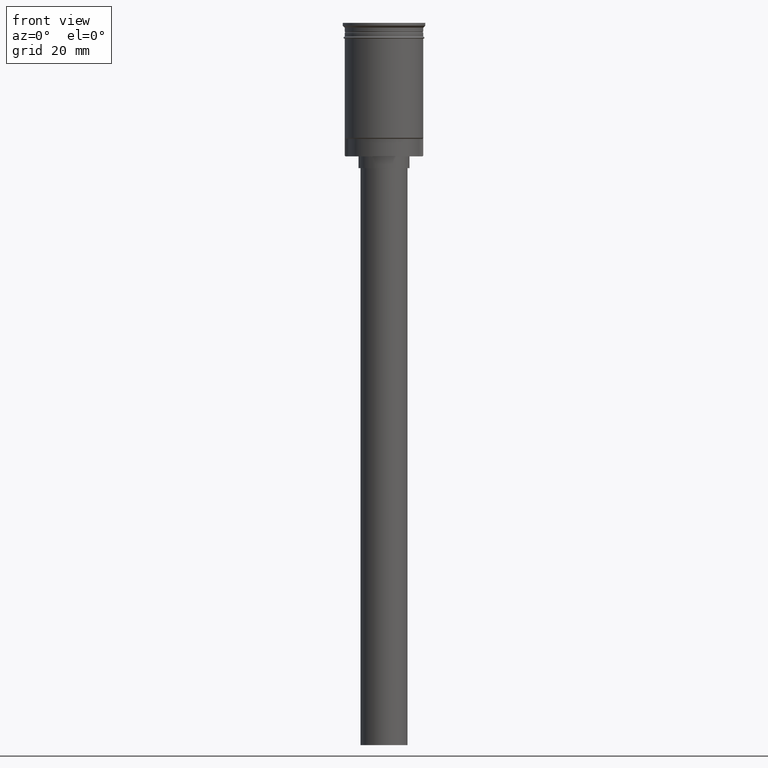
[diagram: clean part render]
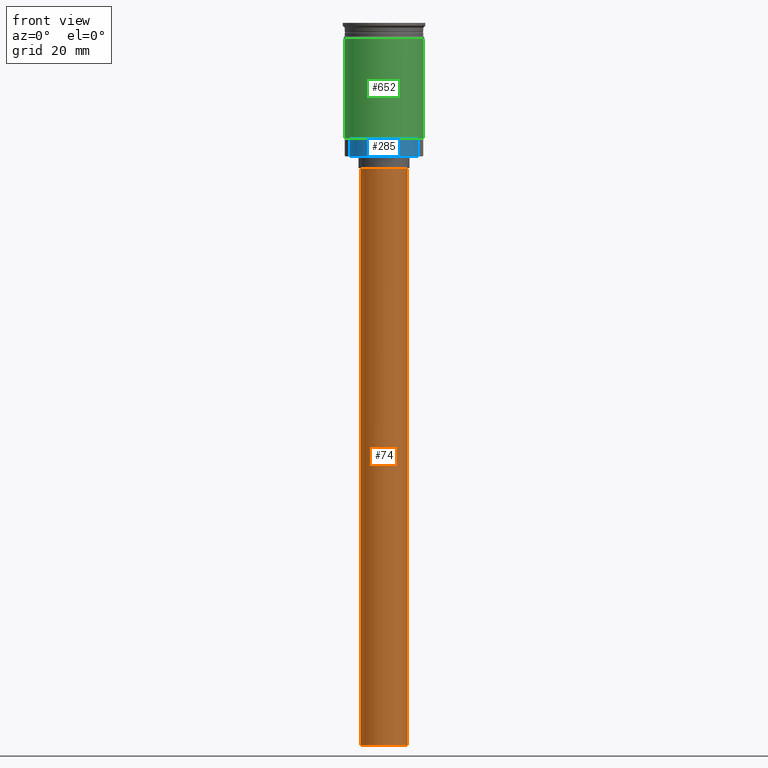
[diagram: same view with three faces highlighted in distinct colors, each labeled with its STEP entity id]
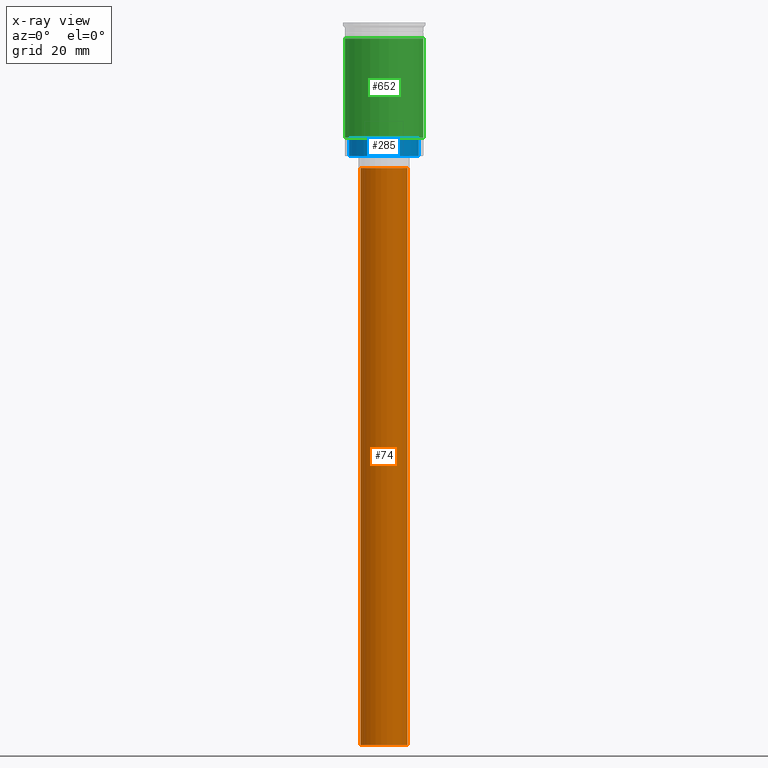
[diagram: x-ray of the same camera — body ghosted, the three highlighted faces saturated]
A machine part, front view with three faces highlighted in distinct colors.
The next image is the same camera in x-ray (body ghosted, the three faces saturated) — at least one of them is partly hidden behind the body in this view.
Their STEP definitions:

[orange] entity #74 — the highlighted cylindrical surface (edge-blend (fillet) strip) has radius 6 mm, axis along (-0, -0, 1).
#65 = CYLINDRICAL_SURFACE ( 'NONE', #1532, 6.000000000000000888 ) ;
#74 = ADVANCED_FACE ( 'NONE', ( #1289 ), #65, .T. ) ;
#102 = CARTESIAN_POINT ( 'NONE',  ( -6.000000000000000888, 7.347880794884120722E-16, -37.00000000000000000 ) ) ;
#175 = EDGE_CURVE ( 'NONE', #1139, #284, #824, .T. ) ;
#186 = CARTESIAN_POINT ( 'NONE',  ( -6.000000000000000888, 7.347880794884120722E-16, -184.0000000000000000 ) ) ;
#204 = ORIENTED_EDGE ( 'NONE', *, *, #399, .T. ) ;
#284 = VERTEX_POINT ( 'NONE', #102 ) ;
#327 = EDGE_CURVE ( 'NONE', #477, #284, #658, .T. ) ;
#354 = DIRECTION ( 'NONE',  ( 0.000000000000000000, 0.000000000000000000, -1.000000000000000000 ) ) ;
#399 = EDGE_CURVE ( 'NONE', #1363, #477, #1011, .T. ) ;
#477 = VERTEX_POINT ( 'NONE', #642 ) ;
#485 = ORIENTED_EDGE ( 'NONE', *, *, #175, .F. ) ;
#576 = DIRECTION ( 'NONE',  ( 1.000000000000000000, 0.000000000000000000, 0.000000000000000000 ) ) ;
#615 = CARTESIAN_POINT ( 'NONE',  ( 0.000000000000000000, 0.000000000000000000, -37.00000000000000000 ) ) ;
#642 = CARTESIAN_POINT ( 'NONE',  ( 6.000000000000000888, 0.000000000000000000, -37.00000000000000000 ) ) ;
#656 = CIRCLE ( 'NONE', #889, 6.000000000000000888 ) ;
#658 = CIRCLE ( 'NONE', #1562, 6.000000000000000888 ) ;
#667 = EDGE_LOOP ( 'NONE', ( #485, #1482, #204, #898 ) ) ;
#824 = LINE ( 'NONE', #1061, #1297 ) ;
#853 = DIRECTION ( 'NONE',  ( -1.000000000000000000, 0.000000000000000000, 0.000000000000000000 ) ) ;
#889 = AXIS2_PLACEMENT_3D ( 'NONE', #1388, #1276, #1146 ) ;
#898 = ORIENTED_EDGE ( 'NONE', *, *, #327, .T. ) ;
#994 = VECTOR ( 'NONE', #1305, 1000.000000000000000 ) ;
#1011 = LINE ( 'NONE', #1286, #994 ) ;
#1061 = CARTESIAN_POINT ( 'NONE',  ( -6.000000000000000888, 7.347880794884120722E-16, -184.0000000000000000 ) ) ;
#1073 = CARTESIAN_POINT ( 'NONE',  ( 0.000000000000000000, 0.000000000000000000, -184.0000000000000000 ) ) ;
#1090 = CARTESIAN_POINT ( 'NONE',  ( 6.000000000000000888, 0.000000000000000000, -184.0000000000000000 ) ) ;
#1139 = VERTEX_POINT ( 'NONE', #186 ) ;
#1146 = DIRECTION ( 'NONE',  ( -1.000000000000000000, 0.000000000000000000, 0.000000000000000000 ) ) ;
#1276 = DIRECTION ( 'NONE',  ( 0.000000000000000000, 0.000000000000000000, -1.000000000000000000 ) ) ;
#1286 = CARTESIAN_POINT ( 'NONE',  ( 6.000000000000000888, 0.000000000000000000, -184.0000000000000000 ) ) ;
#1289 = FACE_OUTER_BOUND ( 'NONE', #667, .T. ) ;
#1297 = VECTOR ( 'NONE', #1321, 1000.000000000000000 ) ;
#1305 = DIRECTION ( 'NONE',  ( -0.000000000000000000, -0.000000000000000000, 1.000000000000000000 ) ) ;
#1321 = DIRECTION ( 'NONE',  ( -0.000000000000000000, -0.000000000000000000, 1.000000000000000000 ) ) ;
#1363 = VERTEX_POINT ( 'NONE', #1090 ) ;
#1388 = CARTESIAN_POINT ( 'NONE',  ( 0.000000000000000000, 0.000000000000000000, -184.0000000000000000 ) ) ;
#1482 = ORIENTED_EDGE ( 'NONE', *, *, #1570, .F. ) ;
#1532 = AXIS2_PLACEMENT_3D ( 'NONE', #1073, #1564, #576 ) ;
#1562 = AXIS2_PLACEMENT_3D ( 'NONE', #615, #354, #853 ) ;
#1564 = DIRECTION ( 'NONE',  ( -0.000000000000000000, -0.000000000000000000, 1.000000000000000000 ) ) ;
#1570 = EDGE_CURVE ( 'NONE', #1363, #1139, #656, .T. ) ;

[blue] entity #285 — the highlighted cylindrical surface (edge-blend (fillet) strip) has radius 9.05 mm, axis along (-0, -0, 1).
#9 = CIRCLE ( 'NONE', #890, 9.049999999999991829 ) ;
#19 = DIRECTION ( 'NONE',  ( -0.000000000000000000, -0.000000000000000000, 1.000000000000000000 ) ) ;
#108 = DIRECTION ( 'NONE',  ( 1.000000000000000000, 0.000000000000000000, 0.000000000000000000 ) ) ;
#117 = DIRECTION ( 'NONE',  ( -0.000000000000000000, -0.000000000000000000, 1.000000000000000000 ) ) ;
#171 = ORIENTED_EDGE ( 'NONE', *, *, #630, .T. ) ;
#196 = LINE ( 'NONE', #770, #301 ) ;
#252 = CARTESIAN_POINT ( 'NONE',  ( -8.869844917012439822, -1.796761294148008892, -33.99999999999999289 ) ) ;
#254 = EDGE_CURVE ( 'NONE', #922, #1468, #9, .T. ) ;
#261 = DIRECTION ( 'NONE',  ( 0.000000000000000000, 0.000000000000000000, -1.000000000000000000 ) ) ;
#279 = LINE ( 'NONE', #1370, #1021 ) ;
#285 = ADVANCED_FACE ( 'NONE', ( #1345 ), #746, .T. ) ;
#301 = VECTOR ( 'NONE', #383, 1000.000000000000000 ) ;
#341 = DIRECTION ( 'NONE',  ( 0.000000000000000000, 0.000000000000000000, -1.000000000000000000 ) ) ;
#383 = DIRECTION ( 'NONE',  ( -0.000000000000000000, -0.000000000000000000, 1.000000000000000000 ) ) ;
#411 = EDGE_CURVE ( 'NONE', #922, #1234, #279, .T. ) ;
#460 = CIRCLE ( 'NONE', #1404, 9.049999999999991829 ) ;
#468 = CARTESIAN_POINT ( 'NONE',  ( 0.000000000000000000, 0.000000000000000000, -29.50000000000000000 ) ) ;
#473 = ORIENTED_EDGE ( 'NONE', *, *, #977, .F. ) ;
#486 = CARTESIAN_POINT ( 'NONE',  ( 0.000000000000000000, 0.000000000000000000, -33.99999999999999289 ) ) ;
#534 = VERTEX_POINT ( 'NONE', #820 ) ;
#536 = AXIS2_PLACEMENT_3D ( 'NONE', #601, #117, #108 ) ;
#601 = CARTESIAN_POINT ( 'NONE',  ( 0.000000000000000000, 0.000000000000000000, -33.99999999999999289 ) ) ;
#630 = EDGE_CURVE ( 'NONE', #1234, #534, #460, .T. ) ;
#693 = EDGE_LOOP ( 'NONE', ( #171, #473, #906, #880 ) ) ;
#746 = CYLINDRICAL_SURFACE ( 'NONE', #536, 9.049999999999991829 ) ;
#770 = CARTESIAN_POINT ( 'NONE',  ( -8.869844917012439822, -1.796761294148008892, -33.99999999999999289 ) ) ;
#820 = CARTESIAN_POINT ( 'NONE',  ( -8.869844917012439822, -1.796761294148008892, -29.50000000000000000 ) ) ;
#880 = ORIENTED_EDGE ( 'NONE', *, *, #411, .T. ) ;
#890 = AXIS2_PLACEMENT_3D ( 'NONE', #486, #261, #973 ) ;
#906 = ORIENTED_EDGE ( 'NONE', *, *, #254, .F. ) ;
#922 = VERTEX_POINT ( 'NONE', #1177 ) ;
#973 = DIRECTION ( 'NONE',  ( -1.000000000000000000, 0.000000000000000000, 0.000000000000000000 ) ) ;
#977 = EDGE_CURVE ( 'NONE', #1468, #534, #196, .T. ) ;
#1021 = VECTOR ( 'NONE', #19, 1000.000000000000000 ) ;
#1177 = CARTESIAN_POINT ( 'NONE',  ( 8.869844917012441599, -1.796761294148009780, -33.99999999999999289 ) ) ;
#1234 = VERTEX_POINT ( 'NONE', #1536 ) ;
#1345 = FACE_OUTER_BOUND ( 'NONE', #693, .T. ) ;
#1370 = CARTESIAN_POINT ( 'NONE',  ( 8.869844917012441599, -1.796761294148009780, -33.99999999999999289 ) ) ;
#1404 = AXIS2_PLACEMENT_3D ( 'NONE', #468, #341, #1586 ) ;
#1468 = VERTEX_POINT ( 'NONE', #252 ) ;
#1536 = CARTESIAN_POINT ( 'NONE',  ( 8.869844917012441599, -1.796761294148009780, -29.50000000000000000 ) ) ;
#1586 = DIRECTION ( 'NONE',  ( -1.000000000000000000, 0.000000000000000000, 0.000000000000000000 ) ) ;

[green] entity #652 — the highlighted cylindrical surface (partial cylindrical patch) has radius 10 mm, axis along (-0, -0, 1).
#92 = DIRECTION ( 'NONE',  ( 1.000000000000000000, 0.000000000000000000, 0.000000000000000000 ) ) ;
#105 = FACE_OUTER_BOUND ( 'NONE', #1085, .T. ) ;
#141 = DIRECTION ( 'NONE',  ( -0.000000000000000000, -0.000000000000000000, 1.000000000000000000 ) ) ;
#159 = LINE ( 'NONE', #412, #1349 ) ;
#191 = CIRCLE ( 'NONE', #1519, 9.999999999999994671 ) ;
#208 = DIRECTION ( 'NONE',  ( 1.000000000000000000, 0.000000000000000000, 0.000000000000000000 ) ) ;
#260 = ORIENTED_EDGE ( 'NONE', *, *, #730, .T. ) ;
#412 = CARTESIAN_POINT ( 'NONE',  ( -9.999999999999994671, 1.224646799147352665E-15, 0.000000000000000000 ) ) ;
#481 = CYLINDRICAL_SURFACE ( 'NONE', #1200, 9.999999999999994671 ) ;
#517 = CARTESIAN_POINT ( 'NONE',  ( 9.999999999999998224, 0.000000000000000000, -3.999999999999996447 ) ) ;
#652 = ADVANCED_FACE ( 'NONE', ( #105 ), #481, .T. ) ;
#730 = EDGE_CURVE ( 'NONE', #1192, #1425, #744, .T. ) ;
#741 = ORIENTED_EDGE ( 'NONE', *, *, #1346, .F. ) ;
#742 = EDGE_CURVE ( 'NONE', #1050, #1192, #191, .T. ) ;
#744 = LINE ( 'NONE', #992, #970 ) ;
#753 = ORIENTED_EDGE ( 'NONE', *, *, #1554, .F. ) ;
#757 = CARTESIAN_POINT ( 'NONE',  ( -9.999999999999991118, 0.000000000000000000, -29.29999999999997229 ) ) ;
#772 = CARTESIAN_POINT ( 'NONE',  ( 0.000000000000000000, 0.000000000000000000, -29.29999999999997229 ) ) ;
#828 = VERTEX_POINT ( 'NONE', #1417 ) ;
#954 = DIRECTION ( 'NONE',  ( -0.000000000000000000, -0.000000000000000000, 1.000000000000000000 ) ) ;
#970 = VECTOR ( 'NONE', #141, 1000.000000000000000 ) ;
#984 = DIRECTION ( 'NONE',  ( -1.000000000000000000, 0.000000000000000000, 0.000000000000000000 ) ) ;
#992 = CARTESIAN_POINT ( 'NONE',  ( 9.999999999999994671, 0.000000000000000000, 0.000000000000000000 ) ) ;
#1031 = CARTESIAN_POINT ( 'NONE',  ( 9.999999999999994671, 1.224646799147352665E-15, -29.29999999999997229 ) ) ;
#1050 = VERTEX_POINT ( 'NONE', #757 ) ;
#1085 = EDGE_LOOP ( 'NONE', ( #753, #1338, #260, #741 ) ) ;
#1102 = CARTESIAN_POINT ( 'NONE',  ( 0.000000000000000000, 0.000000000000000000, 0.000000000000000000 ) ) ;
#1171 = CIRCLE ( 'NONE', #1429, 9.999999999999998224 ) ;
#1192 = VERTEX_POINT ( 'NONE', #1031 ) ;
#1200 = AXIS2_PLACEMENT_3D ( 'NONE', #1102, #954, #92 ) ;
#1257 = DIRECTION ( 'NONE',  ( -0.000000000000000000, -0.000000000000000000, 1.000000000000000000 ) ) ;
#1302 = CARTESIAN_POINT ( 'NONE',  ( 0.000000000000000000, 0.000000000000000000, -3.999999999999996447 ) ) ;
#1315 = DIRECTION ( 'NONE',  ( -0.000000000000000000, -0.000000000000000000, 1.000000000000000000 ) ) ;
#1338 = ORIENTED_EDGE ( 'NONE', *, *, #742, .T. ) ;
#1346 = EDGE_CURVE ( 'NONE', #828, #1425, #1171, .T. ) ;
#1349 = VECTOR ( 'NONE', #1511, 1000.000000000000000 ) ;
#1417 = CARTESIAN_POINT ( 'NONE',  ( -10.00000000000000000, 1.224646799147353256E-15, -3.999999999999996447 ) ) ;
#1425 = VERTEX_POINT ( 'NONE', #517 ) ;
#1429 = AXIS2_PLACEMENT_3D ( 'NONE', #1302, #1315, #208 ) ;
#1511 = DIRECTION ( 'NONE',  ( -0.000000000000000000, -0.000000000000000000, 1.000000000000000000 ) ) ;
#1519 = AXIS2_PLACEMENT_3D ( 'NONE', #772, #1257, #984 ) ;
#1554 = EDGE_CURVE ( 'NONE', #1050, #828, #159, .T. ) ;